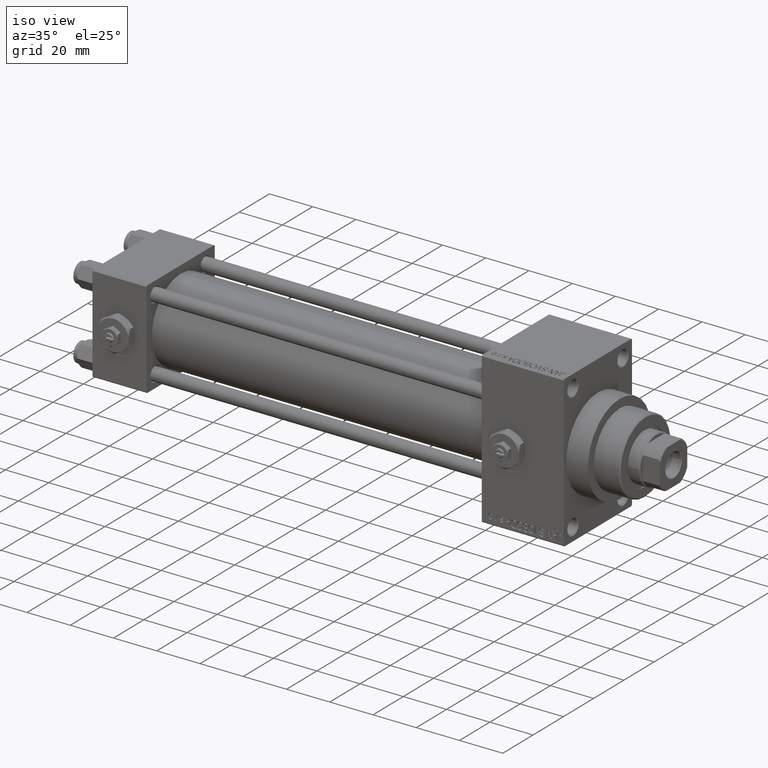
[diagram: clean part render]
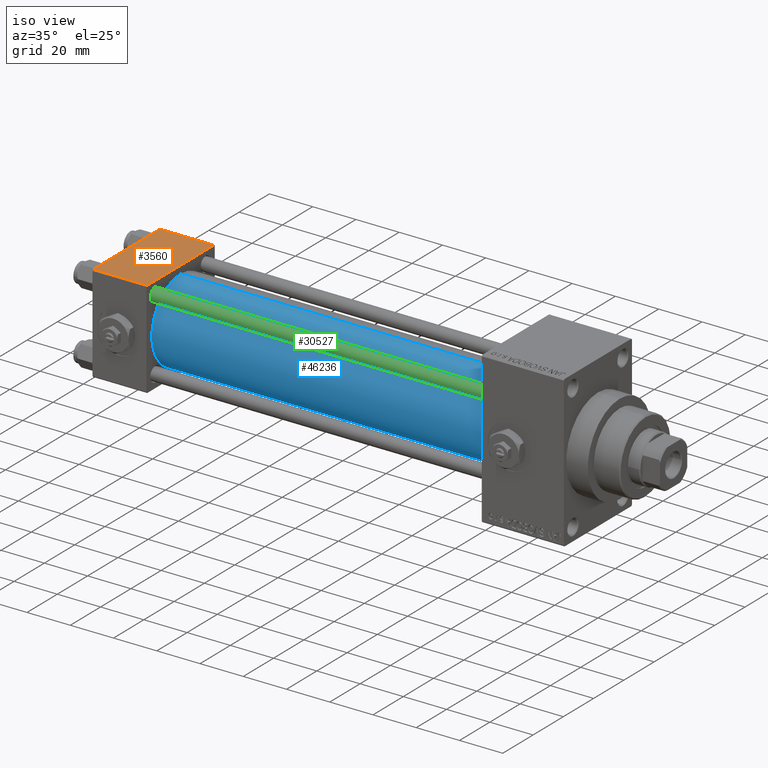
[diagram: same view with three faces highlighted in distinct colors, each labeled with its STEP entity id]
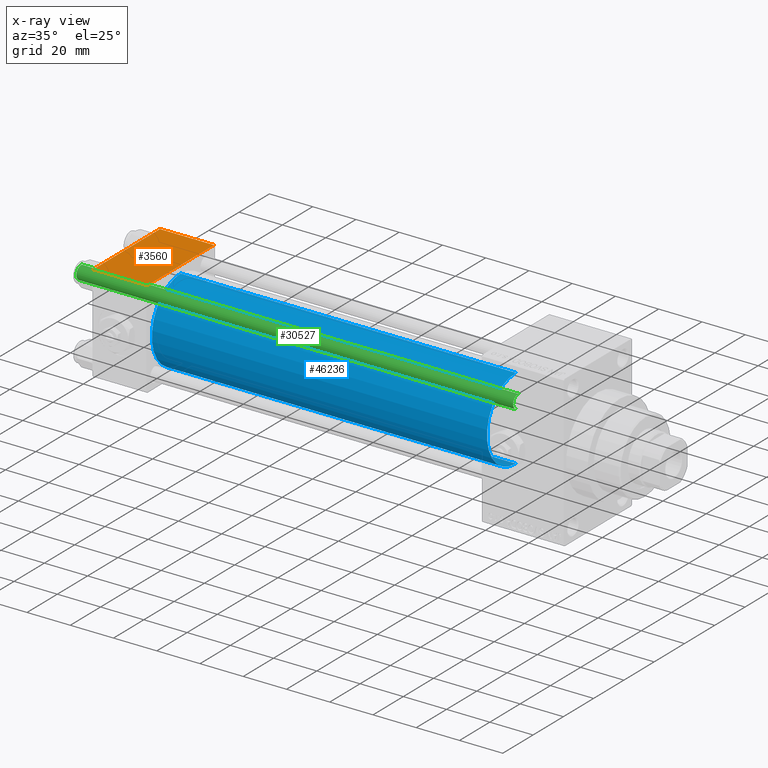
[diagram: x-ray of the same camera — body ghosted, the three highlighted faces saturated]
A machine part, iso view with three faces highlighted in distinct colors.
The next image is the same camera in x-ray (body ghosted, the three faces saturated) — at least one of them is partly hidden behind the body in this view.
Their STEP definitions:

[orange] entity #3560 — the highlighted planar face has unit normal (0, 0, -1).
#1422 = DIRECTION ( 'NONE',  ( 0.000000000000000000, -1.000000000000000000, -7.709882115452476934E-17 ) ) ;
#3148 = ORIENTED_EDGE ( 'NONE', *, *, #8150, .T. ) ;
#3560 = ADVANCED_FACE ( 'NONE', ( #26266 ), #29985, .F. ) ;
#4227 = LINE ( 'NONE', #16394, #14345 ) ;
#4899 = CARTESIAN_POINT ( 'NONE',  ( 25.00000000000000000, 22.50000000000000000, 22.50000000000000355 ) ) ;
#7155 = LINE ( 'NONE', #15114, #8863 ) ;
#7197 = EDGE_CURVE ( 'NONE', #29253, #45647, #4227, .T. ) ;
#8150 = EDGE_CURVE ( 'NONE', #45647, #16893, #7155, .T. ) ;
#8863 = VECTOR ( 'NONE', #30208, 1000.000000000000000 ) ;
#10304 = CARTESIAN_POINT ( 'NONE',  ( 0.000000000000000000, -21.99999999999997868, 22.50000000000000000 ) ) ;
#11299 = LINE ( 'NONE', #33861, #33974 ) ;
#13661 = CARTESIAN_POINT ( 'NONE',  ( 25.00000000000000000, 21.99999999999999289, 22.50000000000000355 ) ) ;
#14345 = VECTOR ( 'NONE', #35216, 1000.000000000000000 ) ;
#14362 = ORIENTED_EDGE ( 'NONE', *, *, #17657, .F. ) ;
#14887 = DIRECTION ( 'NONE',  ( 0.000000000000000000, 1.000000000000000000, 7.709882115452476934E-17 ) ) ;
#15114 = CARTESIAN_POINT ( 'NONE',  ( 25.00000000000000000, -21.99999999999999289, 22.50000000000000000 ) ) ;
#16394 = CARTESIAN_POINT ( 'NONE',  ( 0.000000000000000000, 22.50000000000000000, 22.50000000000000355 ) ) ;
#16893 = VERTEX_POINT ( 'NONE', #37457 ) ;
#17585 = ORIENTED_EDGE ( 'NONE', *, *, #7197, .T. ) ;
#17657 = EDGE_CURVE ( 'NONE', #44131, #16893, #43095, .T. ) ;
#20154 = VECTOR ( 'NONE', #1422, 1000.000000000000000 ) ;
#26266 = FACE_OUTER_BOUND ( 'NONE', #37333, .T. ) ;
#27157 = DIRECTION ( 'NONE',  ( -1.000000000000000000, 0.000000000000000000, 0.000000000000000000 ) ) ;
#29253 = VERTEX_POINT ( 'NONE', #30638 ) ;
#29985 = PLANE ( 'NONE',  #47527 ) ;
#30208 = DIRECTION ( 'NONE',  ( 1.000000000000000000, 0.000000000000000000, 0.000000000000000000 ) ) ;
#30638 = CARTESIAN_POINT ( 'NONE',  ( 0.000000000000000000, 21.99999999999999289, 22.50000000000000355 ) ) ;
#33861 = CARTESIAN_POINT ( 'NONE',  ( 0.000000000000000000, 21.99999999999999289, 22.50000000000000355 ) ) ;
#33974 = VECTOR ( 'NONE', #27157, 1000.000000000000000 ) ;
#35216 = DIRECTION ( 'NONE',  ( 0.000000000000000000, -1.000000000000000000, -7.709882115452476934E-17 ) ) ;
#37333 = EDGE_LOOP ( 'NONE', ( #17585, #3148, #14362, #39486 ) ) ;
#37457 = CARTESIAN_POINT ( 'NONE',  ( 25.00000000000000000, -21.99999999999997868, 22.50000000000000000 ) ) ;
#39486 = ORIENTED_EDGE ( 'NONE', *, *, #42089, .T. ) ;
#42089 = EDGE_CURVE ( 'NONE', #44131, #29253, #11299, .T. ) ;
#43095 = LINE ( 'NONE', #4899, #20154 ) ;
#44131 = VERTEX_POINT ( 'NONE', #13661 ) ;
#44897 = DIRECTION ( 'NONE',  ( 0.000000000000000000, 7.709882115452476934E-17, -1.000000000000000000 ) ) ;
#45647 = VERTEX_POINT ( 'NONE', #10304 ) ;
#47527 = AXIS2_PLACEMENT_3D ( 'NONE', #48871, #44897, #14887 ) ;
#48871 = CARTESIAN_POINT ( 'NONE',  ( 25.00000000000000000, 22.50000000000000000, 22.50000000000000355 ) ) ;

[blue] entity #46236 — the highlighted cylindrical surface (partial cylindrical patch) has radius 19 mm, axis along (-1, -0, -0).
#181 = ORIENTED_EDGE ( 'NONE', *, *, #34398, .T. ) ;
#197 = DIRECTION ( 'NONE',  ( 1.000000000000000000, -0.000000000000000000, 0.000000000000000000 ) ) ;
#2807 = AXIS2_PLACEMENT_3D ( 'NONE', #34178, #197, #7644 ) ;
#3610 = CYLINDRICAL_SURFACE ( 'NONE', #29247, 19.00000000000000000 ) ;
#3963 = CARTESIAN_POINT ( 'NONE',  ( 180.0000000000000000, -2.602085213965210642E-15, 0.000000000000000000 ) ) ;
#5554 = CIRCLE ( 'NONE', #43628, 19.00000000000000000 ) ;
#6696 = VERTEX_POINT ( 'NONE', #8561 ) ;
#6992 = VECTOR ( 'NONE', #10606, 1000.000000000000000 ) ;
#7584 = FACE_OUTER_BOUND ( 'NONE', #21446, .T. ) ;
#7644 = DIRECTION ( 'NONE',  ( 0.000000000000000000, 0.000000000000000000, 1.000000000000000000 ) ) ;
#8561 = CARTESIAN_POINT ( 'NONE',  ( 180.0000000000000000, -2.752562955852396712E-16, -19.00000000000000000 ) ) ;
#10606 = DIRECTION ( 'NONE',  ( -1.000000000000000000, -0.000000000000000000, -0.000000000000000000 ) ) ;
#10944 = ORIENTED_EDGE ( 'NONE', *, *, #44551, .F. ) ;
#12641 = VERTEX_POINT ( 'NONE', #47401 ) ;
#15887 = DIRECTION ( 'NONE',  ( 0.000000000000000000, 0.000000000000000000, -1.000000000000000000 ) ) ;
#16665 = ORIENTED_EDGE ( 'NONE', *, *, #44293, .F. ) ;
#17792 = VERTEX_POINT ( 'NONE', #47063 ) ;
#20868 = VERTEX_POINT ( 'NONE', #41461 ) ;
#21446 = EDGE_LOOP ( 'NONE', ( #10944, #16665, #28526, #181 ) ) ;
#21966 = CARTESIAN_POINT ( 'NONE',  ( 180.0000000000000000, -2.602085213965210642E-15, 0.000000000000000000 ) ) ;
#26224 = CARTESIAN_POINT ( 'NONE',  ( 180.0000000000000000, -2.602085213965210642E-15, 19.00000000000000000 ) ) ;
#27394 = CIRCLE ( 'NONE', #2807, 19.00000000000000000 ) ;
#27626 = DIRECTION ( 'NONE',  ( -1.000000000000000000, -0.000000000000000000, -0.000000000000000000 ) ) ;
#28526 = ORIENTED_EDGE ( 'NONE', *, *, #40660, .T. ) ;
#29247 = AXIS2_PLACEMENT_3D ( 'NONE', #21966, #29647, #45050 ) ;
#29647 = DIRECTION ( 'NONE',  ( -1.000000000000000000, -0.000000000000000000, -0.000000000000000000 ) ) ;
#29942 = LINE ( 'NONE', #26224, #6992 ) ;
#34178 = CARTESIAN_POINT ( 'NONE',  ( 24.99999999999999289, -2.602085213965210642E-15, 0.000000000000000000 ) ) ;
#34398 = EDGE_CURVE ( 'NONE', #12641, #17792, #27394, .T. ) ;
#34834 = LINE ( 'NONE', #43271, #42821 ) ;
#40660 = EDGE_CURVE ( 'NONE', #20868, #12641, #29942, .T. ) ;
#41461 = CARTESIAN_POINT ( 'NONE',  ( 180.0000000000000000, -2.602085213965210642E-15, 19.00000000000000000 ) ) ;
#42821 = VECTOR ( 'NONE', #27626, 1000.000000000000000 ) ;
#43271 = CARTESIAN_POINT ( 'NONE',  ( 180.0000000000000000, -2.752562955852396712E-16, -19.00000000000000000 ) ) ;
#43628 = AXIS2_PLACEMENT_3D ( 'NONE', #3963, #46387, #15887 ) ;
#44293 = EDGE_CURVE ( 'NONE', #20868, #6696, #5554, .T. ) ;
#44551 = EDGE_CURVE ( 'NONE', #6696, #17792, #34834, .T. ) ;
#45050 = DIRECTION ( 'NONE',  ( 0.000000000000000000, 0.000000000000000000, 1.000000000000000000 ) ) ;
#46236 = ADVANCED_FACE ( 'NONE', ( #7584 ), #3610, .T. ) ;
#46387 = DIRECTION ( 'NONE',  ( 1.000000000000000000, 0.000000000000000000, 0.000000000000000000 ) ) ;
#47063 = CARTESIAN_POINT ( 'NONE',  ( 24.99999999999999289, -2.752562955852396712E-16, -19.00000000000000000 ) ) ;
#47401 = CARTESIAN_POINT ( 'NONE',  ( 24.99999999999999289, -2.602085213965210642E-15, 19.00000000000000000 ) ) ;

[green] entity #30527 — the highlighted cylindrical surface (edge-blend (fillet) strip) has radius 3 mm, axis along (1, 0, 0).
#1250 = CIRCLE ( 'NONE', #24220, 3.000000000000000444 ) ;
#2810 = AXIS2_PLACEMENT_3D ( 'NONE', #18708, #44756, #26631 ) ;
#3563 = FACE_OUTER_BOUND ( 'NONE', #23811, .T. ) ;
#3592 = CARTESIAN_POINT ( 'NONE',  ( 3.000000000000000444, 3.673940397442059868E-16, 0.5000000000001114664 ) ) ;
#6638 = AXIS2_PLACEMENT_3D ( 'NONE', #24233, #11856, #17285 ) ;
#9164 = ORIENTED_EDGE ( 'NONE', *, *, #17697, .T. ) ;
#10360 = ORIENTED_EDGE ( 'NONE', *, *, #39462, .F. ) ;
#11249 = DIRECTION ( 'NONE',  ( -0.000000000000000000, -0.000000000000000000, -1.000000000000000000 ) ) ;
#11261 = CYLINDRICAL_SURFACE ( 'NONE', #2810, 3.000000000000000444 ) ;
#11856 = DIRECTION ( 'NONE',  ( -0.000000000000000000, -0.000000000000000000, 1.000000000000000000 ) ) ;
#13073 = VERTEX_POINT ( 'NONE', #39279 ) ;
#16280 = VECTOR ( 'NONE', #11249, 1000.000000000000000 ) ;
#17285 = DIRECTION ( 'NONE',  ( 1.000000000000000000, 0.000000000000000000, 0.000000000000000000 ) ) ;
#17697 = EDGE_CURVE ( 'NONE', #35923, #45362, #28033, .T. ) ;
#18708 = CARTESIAN_POINT ( 'NONE',  ( 0.000000000000000000, 0.000000000000000000, 203.0000000000000000 ) ) ;
#18803 = CARTESIAN_POINT ( 'NONE',  ( -3.000000000000000444, 0.000000000000000000, 0.5000000000001114664 ) ) ;
#21250 = DIRECTION ( 'NONE',  ( -0.000000000000000000, -0.000000000000000000, -1.000000000000000000 ) ) ;
#21911 = LINE ( 'NONE', #41008, #16280 ) ;
#22914 = ORIENTED_EDGE ( 'NONE', *, *, #29412, .T. ) ;
#23811 = EDGE_LOOP ( 'NONE', ( #33265, #22914, #9164, #10360 ) ) ;
#24220 = AXIS2_PLACEMENT_3D ( 'NONE', #46554, #47506, #39570 ) ;
#24233 = CARTESIAN_POINT ( 'NONE',  ( 0.000000000000000000, 0.000000000000000000, 0.5000000000001114664 ) ) ;
#26631 = DIRECTION ( 'NONE',  ( -1.000000000000000000, 0.000000000000000000, 0.000000000000000000 ) ) ;
#28033 = CIRCLE ( 'NONE', #6638, 3.000000000000000444 ) ;
#29412 = EDGE_CURVE ( 'NONE', #41143, #35923, #21911, .T. ) ;
#30527 = ADVANCED_FACE ( 'NONE', ( #3563 ), #11261, .T. ) ;
#33265 = ORIENTED_EDGE ( 'NONE', *, *, #33772, .T. ) ;
#33772 = EDGE_CURVE ( 'NONE', #13073, #41143, #1250, .T. ) ;
#35923 = VERTEX_POINT ( 'NONE', #3592 ) ;
#39279 = CARTESIAN_POINT ( 'NONE',  ( -3.000000000000000444, 0.000000000000000000, 202.5000000000000853 ) ) ;
#39462 = EDGE_CURVE ( 'NONE', #13073, #45362, #40827, .T. ) ;
#39570 = DIRECTION ( 'NONE',  ( 1.000000000000000000, 0.000000000000000000, 0.000000000000000000 ) ) ;
#40827 = LINE ( 'NONE', #47801, #41017 ) ;
#41008 = CARTESIAN_POINT ( 'NONE',  ( 3.000000000000000444, 3.673940397442059868E-16, 203.0000000000000000 ) ) ;
#41017 = VECTOR ( 'NONE', #21250, 1000.000000000000000 ) ;
#41143 = VERTEX_POINT ( 'NONE', #47240 ) ;
#44756 = DIRECTION ( 'NONE',  ( -0.000000000000000000, -0.000000000000000000, -1.000000000000000000 ) ) ;
#45362 = VERTEX_POINT ( 'NONE', #18803 ) ;
#46554 = CARTESIAN_POINT ( 'NONE',  ( 0.000000000000000000, 0.000000000000000000, 202.5000000000000853 ) ) ;
#47240 = CARTESIAN_POINT ( 'NONE',  ( 3.000000000000000444, 3.673940397442059868E-16, 202.5000000000000853 ) ) ;
#47506 = DIRECTION ( 'NONE',  ( 0.000000000000000000, 0.000000000000000000, -1.000000000000000000 ) ) ;
#47801 = CARTESIAN_POINT ( 'NONE',  ( -3.000000000000000444, 0.000000000000000000, 203.0000000000000000 ) ) ;